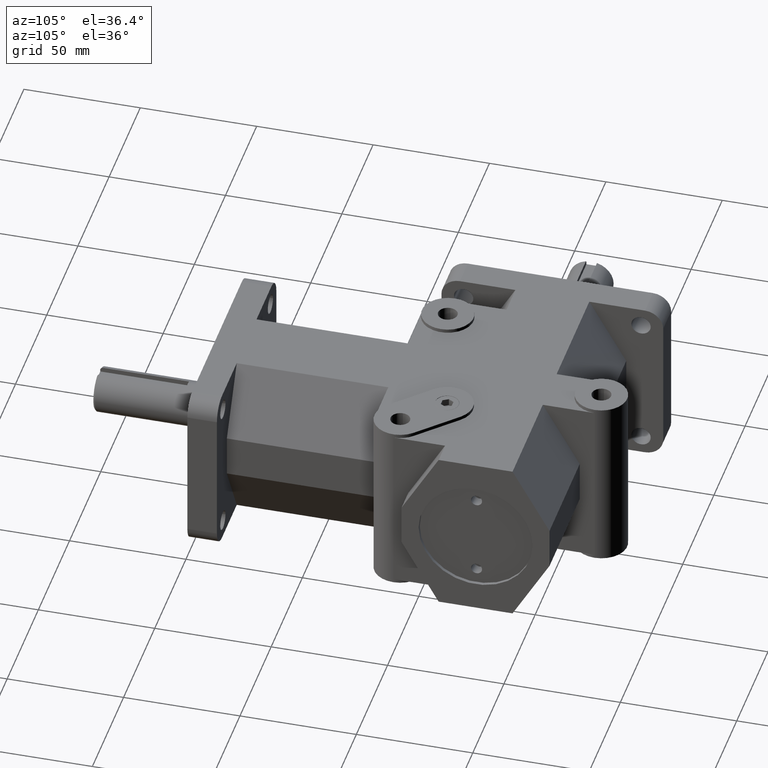
[diagram: clean part render]
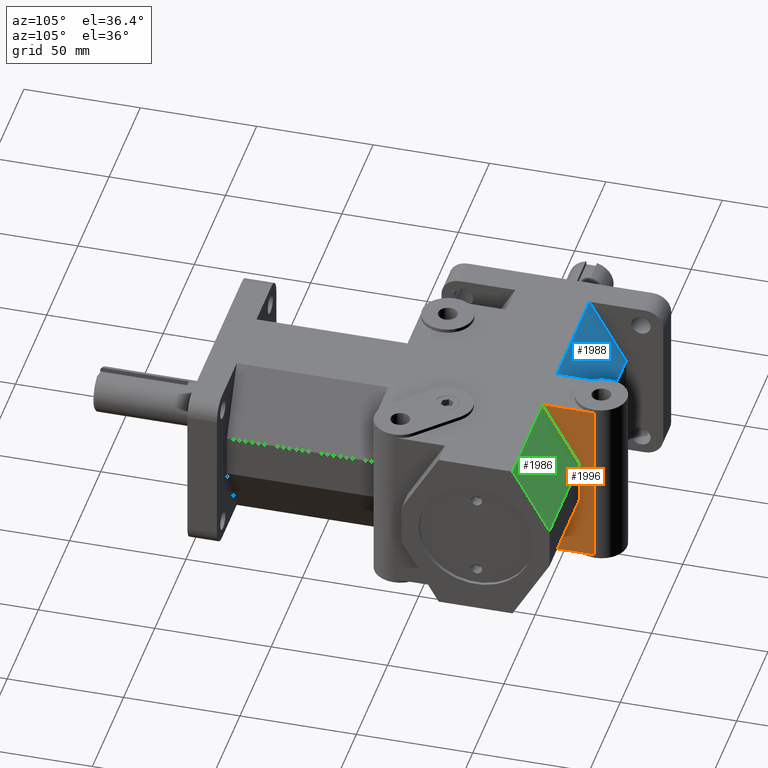
[diagram: same view with three faces highlighted in distinct colors, each labeled with its STEP entity id]
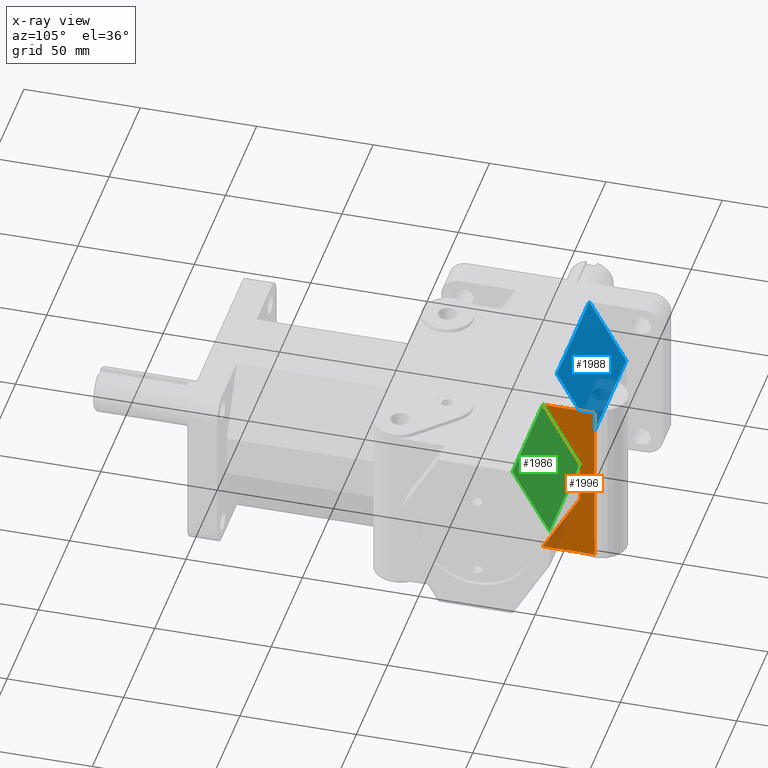
[diagram: x-ray of the same camera — body ghosted, the three highlighted faces saturated]
A machine part, auxiliary view with three faces highlighted in distinct colors.
The next image is the same camera in x-ray (body ghosted, the three faces saturated) — at least one of them is partly hidden behind the body in this view.
Their STEP definitions:

[orange] entity #1996 — the highlighted planar face has unit normal (1, 0, 0).
#72=LINE('',#3004,#263);
#77=LINE('',#3018,#268);
#180=LINE('',#3314,#371);
#183=LINE('',#3319,#374);
#193=LINE('',#3340,#384);
#194=LINE('',#3342,#385);
#263=VECTOR('',#2402,1.);
#268=VECTOR('',#2413,1.);
#371=VECTOR('',#2698,1.);
#374=VECTOR('',#2703,1.);
#384=VECTOR('',#2731,1.);
#385=VECTOR('',#2734,1.);
#559=FACE_OUTER_BOUND('',#702,.T.);
#702=EDGE_LOOP('',(#1731,#1732,#1733,#1734,#1735,#1736));
#892=VERTEX_POINT('',#3001);
#893=VERTEX_POINT('',#3003);
#898=VERTEX_POINT('',#3015);
#899=VERTEX_POINT('',#3017);
#989=VERTEX_POINT('',#3313);
#990=VERTEX_POINT('',#3317);
#1091=EDGE_CURVE('',#893,#892,#72,.T.);
#1098=EDGE_CURVE('',#899,#898,#77,.T.);
#1240=EDGE_CURVE('',#899,#989,#180,.F.);
#1243=EDGE_CURVE('',#990,#892,#183,.F.);
#1253=EDGE_CURVE('',#990,#989,#193,.T.);
#1254=EDGE_CURVE('',#893,#898,#194,.T.);
#1731=ORIENTED_EDGE('',*,*,#1098,.T.);
#1732=ORIENTED_EDGE('',*,*,#1254,.F.);
#1733=ORIENTED_EDGE('',*,*,#1091,.T.);
#1734=ORIENTED_EDGE('',*,*,#1243,.F.);
#1735=ORIENTED_EDGE('',*,*,#1253,.T.);
#1736=ORIENTED_EDGE('',*,*,#1240,.F.);
#1894=PLANE('',#2199);
#1996=ADVANCED_FACE('',(#559),#1894,.T.);
#2199=AXIS2_PLACEMENT_3D('',#3341,#2732,#2733);
#2402=DIRECTION('',(0.,-1.,0.));
#2413=DIRECTION('',(0.,1.,0.));
#2698=DIRECTION('',(0.,-0.500000607857109,-0.866025052837689));
#2703=DIRECTION('',(0.,0.500000607857109,-0.866025052837689));
#2731=DIRECTION('',(0.,0.,-1.));
#2732=DIRECTION('center_axis',(1.,0.,0.));
#2733=DIRECTION('ref_axis',(0.,-1.,0.));
#2734=DIRECTION('',(0.,0.,-1.));
#3001=CARTESIAN_POINT('',(0.4375,5.625,1.4375));
#3003=CARTESIAN_POINT('',(0.4375,6.5,1.4375));
#3004=CARTESIAN_POINT('',(0.4375,4.96797652826016,1.4375));
#3015=CARTESIAN_POINT('',(0.4375,6.5,-1.4375));
#3017=CARTESIAN_POINT('',(0.4375,5.625,-1.4375));
#3018=CARTESIAN_POINT('',(0.4375,6.5,-1.4375));
#3313=CARTESIAN_POINT('',(0.4375,6.25,-0.35497));
#3314=CARTESIAN_POINT('',(0.4375,6.17060332168301,-0.492488857885585));
#3317=CARTESIAN_POINT('',(0.4375,6.25,0.35497));
#3319=CARTESIAN_POINT('',(0.4375,6.17060332168301,0.492488857885585));
#3340=CARTESIAN_POINT('',(0.4375,6.25,0.));
#3341=CARTESIAN_POINT('Origin',(0.4375,6.25,0.));
#3342=CARTESIAN_POINT('',(0.4375,6.5,0.));

[blue] entity #1988 — the highlighted planar face has unit normal (0, 0.866, 0.5).
#42=LINE('',#2927,#233);
#74=LINE('',#3009,#265);
#186=LINE('',#3326,#377);
#187=LINE('',#3327,#378);
#233=VECTOR('',#2342,1.);
#265=VECTOR('',#2406,1.);
#377=VECTOR('',#2710,1.);
#378=VECTOR('',#2711,1.);
#551=FACE_OUTER_BOUND('',#687,.T.);
#687=EDGE_LOOP('',(#1680,#1681,#1682,#1683));
#860=VERTEX_POINT('',#2924);
#861=VERTEX_POINT('',#2926);
#895=VERTEX_POINT('',#3007);
#992=VERTEX_POINT('',#3325);
#1049=EDGE_CURVE('',#861,#860,#42,.F.);
#1094=EDGE_CURVE('',#860,#895,#74,.T.);
#1246=EDGE_CURVE('',#895,#992,#186,.F.);
#1247=EDGE_CURVE('',#992,#861,#187,.T.);
#1680=ORIENTED_EDGE('',*,*,#1049,.T.);
#1681=ORIENTED_EDGE('',*,*,#1094,.T.);
#1682=ORIENTED_EDGE('',*,*,#1246,.T.);
#1683=ORIENTED_EDGE('',*,*,#1247,.T.);
#1886=PLANE('',#2191);
#1988=ADVANCED_FACE('',(#551),#1886,.T.);
#2191=AXIS2_PLACEMENT_3D('',#3324,#2708,#2709);
#2342=DIRECTION('',(0.,0.500000607857109,-0.866025052837689));
#2406=DIRECTION('',(1.,0.,0.));
#2708=DIRECTION('center_axis',(0.,0.866025052837689,0.500000607857109));
#2709=DIRECTION('ref_axis',(0.,0.500000607857109,-0.866025052837689));
#2710=DIRECTION('',(0.,-0.500000607857109,0.866025052837689));
#2711=DIRECTION('',(-1.,0.,0.));
#2924=CARTESIAN_POINT('',(-2.5,5.625,1.4375));
#2926=CARTESIAN_POINT('',(-2.5,6.25,0.35497));
#2927=CARTESIAN_POINT('',(-2.5,6.17060332168301,0.492488857885585));
#3007=CARTESIAN_POINT('',(-0.4375,5.625,1.4375));
#3009=CARTESIAN_POINT('',(-0.21875,5.625,1.4375));
#3324=CARTESIAN_POINT('Origin',(-0.21875,5.9375,0.896235));
#3325=CARTESIAN_POINT('',(-0.4375,6.25,0.35497));
#3326=CARTESIAN_POINT('',(-0.4375,6.20185339766519,0.438362226280793));
#3327=CARTESIAN_POINT('',(-0.21875,6.25,0.35497));

[green] entity #1986 — the highlighted planar face has unit normal (0, 0.866, 0.5).
#71=LINE('',#3002,#262);
#116=LINE('',#3106,#307);
#182=LINE('',#3318,#373);
#183=LINE('',#3319,#374);
#262=VECTOR('',#2401,1.);
#307=VECTOR('',#2486,1.);
#373=VECTOR('',#2702,1.);
#374=VECTOR('',#2703,1.);
#549=FACE_OUTER_BOUND('',#685,.T.);
#685=EDGE_LOOP('',(#1672,#1673,#1674,#1675));
#891=VERTEX_POINT('',#2999);
#892=VERTEX_POINT('',#3001);
#931=VERTEX_POINT('',#3104);
#990=VERTEX_POINT('',#3317);
#1090=EDGE_CURVE('',#892,#891,#71,.T.);
#1143=EDGE_CURVE('',#891,#931,#116,.T.);
#1242=EDGE_CURVE('',#931,#990,#182,.T.);
#1243=EDGE_CURVE('',#990,#892,#183,.F.);
#1672=ORIENTED_EDGE('',*,*,#1143,.T.);
#1673=ORIENTED_EDGE('',*,*,#1242,.T.);
#1674=ORIENTED_EDGE('',*,*,#1243,.T.);
#1675=ORIENTED_EDGE('',*,*,#1090,.T.);
#1884=PLANE('',#2189);
#1986=ADVANCED_FACE('',(#549),#1884,.T.);
#2189=AXIS2_PLACEMENT_3D('',#3316,#2700,#2701);
#2401=DIRECTION('',(1.,0.,0.));
#2486=DIRECTION('',(0.,0.500000607857109,-0.866025052837689));
#2700=DIRECTION('center_axis',(0.,0.866025052837689,0.500000607857109));
#2701=DIRECTION('ref_axis',(0.,0.500000607857109,-0.866025052837689));
#2702=DIRECTION('',(-1.,0.,0.));
#2703=DIRECTION('',(0.,0.500000607857109,-0.866025052837689));
#2999=CARTESIAN_POINT('',(2.344,5.625,1.4375));
#3001=CARTESIAN_POINT('',(0.4375,5.625,1.4375));
#3002=CARTESIAN_POINT('',(1.25,5.625,1.4375));
#3104=CARTESIAN_POINT('',(2.344,6.25,0.35497));
#3106=CARTESIAN_POINT('',(2.344,11.034652114566,-7.93227712572986));
#3316=CARTESIAN_POINT('Origin',(1.25,5.9375,0.896235));
#3317=CARTESIAN_POINT('',(0.4375,6.25,0.35497));
#3318=CARTESIAN_POINT('',(1.25,6.25,0.35497));
#3319=CARTESIAN_POINT('',(0.4375,6.17060332168301,0.492488857885585));